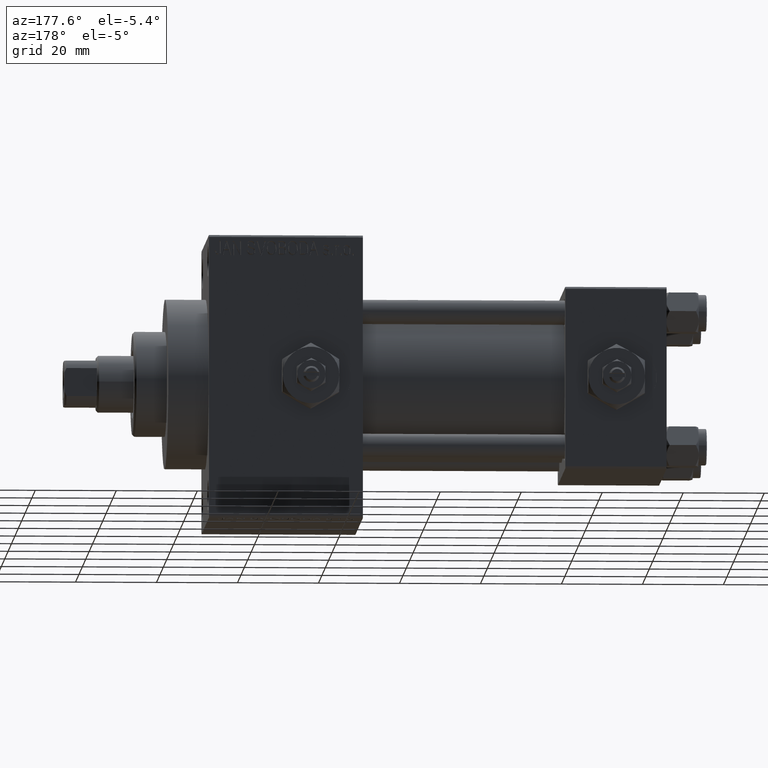
[diagram: clean part render]
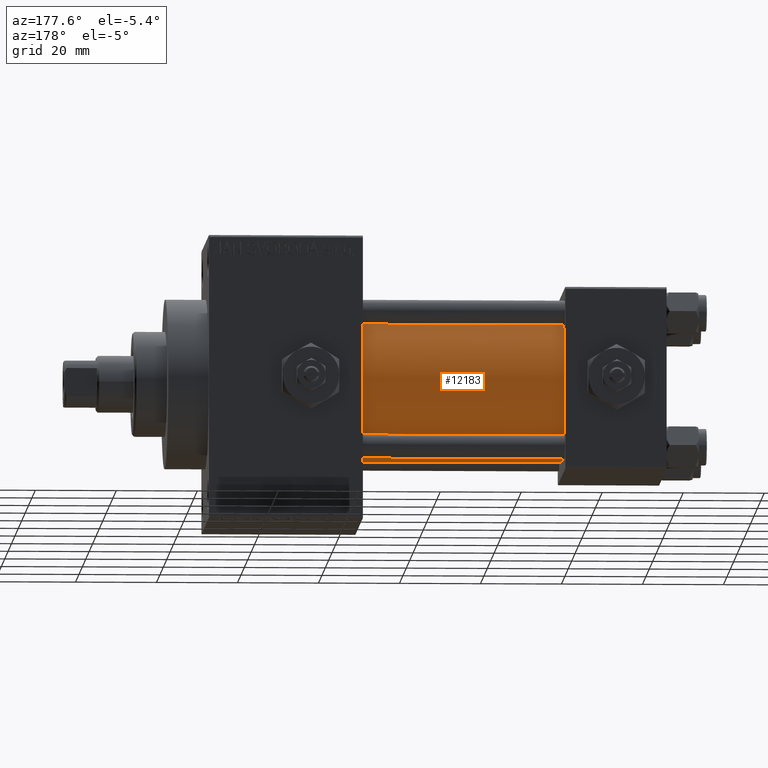
[diagram: same view with one face highlighted and labeled with its STEP entity id]
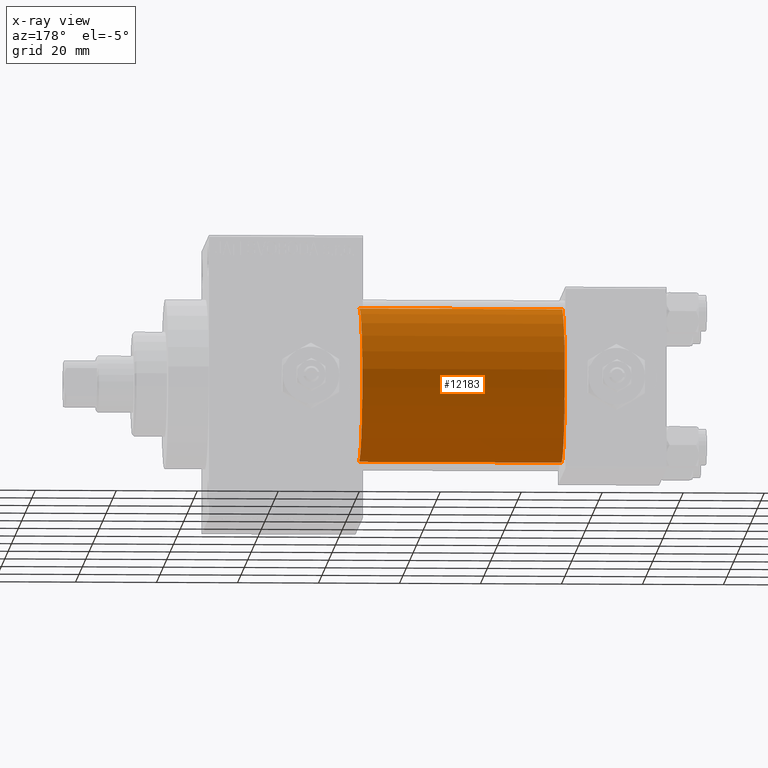
[diagram: x-ray of the same camera — body ghosted, the highlighted face saturated]
A machine part, auxiliary view. The second image highlights one B-rep face of the part: STEP entity #12183.
The next image is the same camera in x-ray: the body ghosted, the highlighted face saturated — about 0% of this face is hidden behind the body in this view.
In plain terms, the highlighted cylindrical surface (partial cylindrical patch) has radius 19 mm, axis along (-1, -0, -0).
Its self-contained STEP definition (entity closure, byte-faithful):
#924 = DIRECTION ( 'NONE',  ( 0.000000000000000000, 0.000000000000000000, 1.000000000000000000 ) ) ;
#1964 = EDGE_CURVE ( 'NONE', #46199, #30760, #14518, .T. ) ;
#3027 = LINE ( 'NONE', #37276, #31562 ) ;
#4573 = CARTESIAN_POINT ( 'NONE',  ( 75.00000000000001421, -2.752562955852396712E-16, -19.00000000000000000 ) ) ;
#6158 = LINE ( 'NONE', #24786, #25936 ) ;
#9104 = CARTESIAN_POINT ( 'NONE',  ( 25.00000000000000000, -2.602085213965210642E-15, 0.000000000000000000 ) ) ;
#12183 = ADVANCED_FACE ( 'NONE', ( #37312 ), #34557, .T. ) ;
#12932 = EDGE_LOOP ( 'NONE', ( #12975, #29600, #29899, #34374 ) ) ;
#12975 = ORIENTED_EDGE ( 'NONE', *, *, #44962, .F. ) ;
#13591 = DIRECTION ( 'NONE',  ( 1.000000000000000000, 0.000000000000000000, 0.000000000000000000 ) ) ;
#13950 = DIRECTION ( 'NONE',  ( -1.000000000000000000, -0.000000000000000000, -0.000000000000000000 ) ) ;
#14518 = CIRCLE ( 'NONE', #18483, 19.00000000000000000 ) ;
#15912 = EDGE_CURVE ( 'NONE', #17396, #30760, #3027, .T. ) ;
#15950 = CIRCLE ( 'NONE', #43728, 19.00000000000000000 ) ;
#17396 = VERTEX_POINT ( 'NONE', #21770 ) ;
#18483 = AXIS2_PLACEMENT_3D ( 'NONE', #9104, #34935, #924 ) ;
#21770 = CARTESIAN_POINT ( 'NONE',  ( 75.00000000000001421, -2.602085213965210642E-15, 19.00000000000000000 ) ) ;
#21882 = AXIS2_PLACEMENT_3D ( 'NONE', #42030, #23152, #22906 ) ;
#22906 = DIRECTION ( 'NONE',  ( 0.000000000000000000, 0.000000000000000000, 1.000000000000000000 ) ) ;
#23152 = DIRECTION ( 'NONE',  ( -1.000000000000000000, -0.000000000000000000, -0.000000000000000000 ) ) ;
#24786 = CARTESIAN_POINT ( 'NONE',  ( 75.00000000000001421, -2.752562955852396712E-16, -19.00000000000000000 ) ) ;
#25936 = VECTOR ( 'NONE', #43893, 1000.000000000000000 ) ;
#29600 = ORIENTED_EDGE ( 'NONE', *, *, #30665, .T. ) ;
#29899 = ORIENTED_EDGE ( 'NONE', *, *, #1964, .T. ) ;
#30665 = EDGE_CURVE ( 'NONE', #35341, #46199, #6158, .T. ) ;
#30760 = VERTEX_POINT ( 'NONE', #37165 ) ;
#31562 = VECTOR ( 'NONE', #13950, 1000.000000000000000 ) ;
#34374 = ORIENTED_EDGE ( 'NONE', *, *, #15912, .F. ) ;
#34557 = CYLINDRICAL_SURFACE ( 'NONE', #21882, 19.00000000000000000 ) ;
#34935 = DIRECTION ( 'NONE',  ( 1.000000000000000000, -0.000000000000000000, 0.000000000000000000 ) ) ;
#35341 = VERTEX_POINT ( 'NONE', #4573 ) ;
#37165 = CARTESIAN_POINT ( 'NONE',  ( 25.00000000000000000, -2.602085213965210642E-15, 19.00000000000000000 ) ) ;
#37276 = CARTESIAN_POINT ( 'NONE',  ( 75.00000000000001421, -2.602085213965210642E-15, 19.00000000000000000 ) ) ;
#37312 = FACE_OUTER_BOUND ( 'NONE', #12932, .T. ) ;
#37592 = CARTESIAN_POINT ( 'NONE',  ( 25.00000000000000000, -2.752562955852396712E-16, -19.00000000000000000 ) ) ;
#40887 = DIRECTION ( 'NONE',  ( 0.000000000000000000, 0.000000000000000000, -1.000000000000000000 ) ) ;
#42030 = CARTESIAN_POINT ( 'NONE',  ( 75.00000000000001421, -2.602085213965210642E-15, 0.000000000000000000 ) ) ;
#43728 = AXIS2_PLACEMENT_3D ( 'NONE', #48347, #13591, #40887 ) ;
#43893 = DIRECTION ( 'NONE',  ( -1.000000000000000000, -0.000000000000000000, -0.000000000000000000 ) ) ;
#44962 = EDGE_CURVE ( 'NONE', #35341, #17396, #15950, .T. ) ;
#46199 = VERTEX_POINT ( 'NONE', #37592 ) ;
#48347 = CARTESIAN_POINT ( 'NONE',  ( 75.00000000000001421, -2.602085213965210642E-15, 0.000000000000000000 ) ) ;